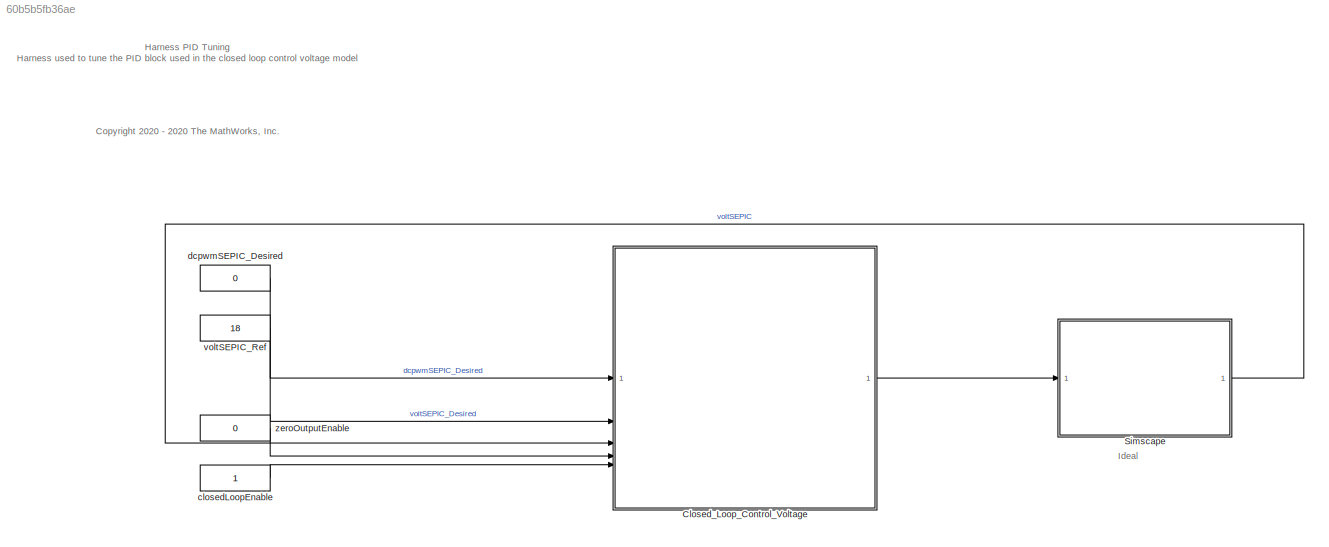
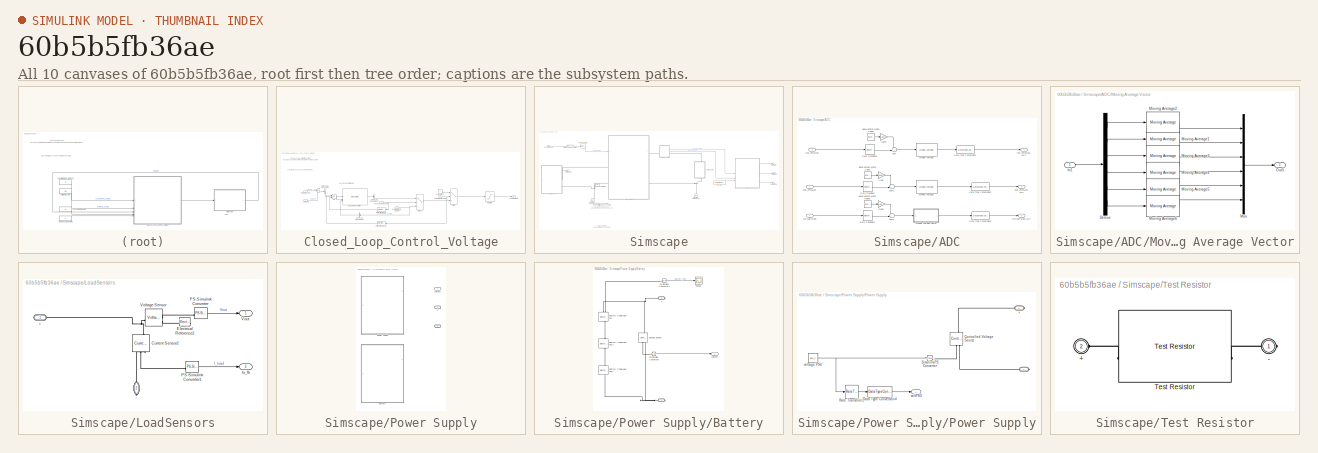
[diagram: thumbnail index - all 10 canvases of the model, root first then tree order]
MODEL slx_60b5b5fb36ae
KIND model
CONFIG AbsTol = auto
CONFIG EnableMultiTasking = off
CONFIG FixedStep = ts500us
CONFIG MaxStep = auto
CONFIG MinStep = auto
CONFIG RelTol = 1e-3
CONFIG SampleTimeConstraint = Unconstrained
CONFIG SolverName = ode23t
CONFIG StartTime = 0.0
CONFIG StopTime = 0.1
WORKSPACE source: mxarray member
WORKSPACE TsModel = 0.001
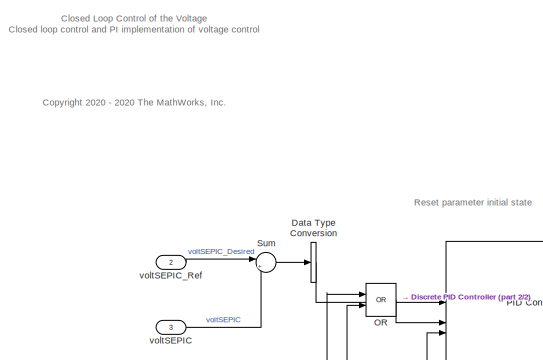
[diagram: Closed_Loop_Control_Voltage - part 1/2, middle left region]
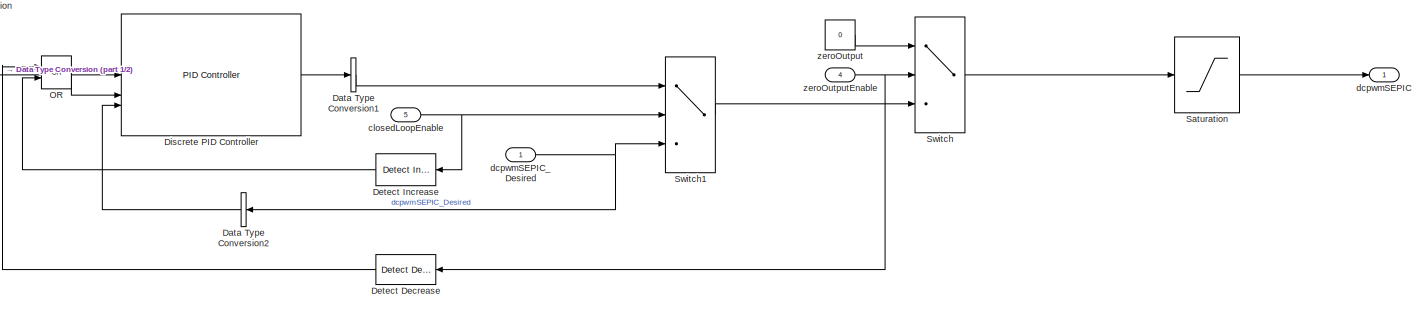
[diagram: Closed_Loop_Control_Voltage - part 2/2, full width, bottom band]
BLOCK [SubSystem] Closed_Loop_Control_Voltage
BLOCK [DataTypeConversion] Closed_Loop_Control_Voltage/Data Type Conversion
  OutDataTypeStr = double
  RndMeth = Floor
  SaturateOnIntegerOverflow = off
BLOCK [DataTypeConversion] Closed_Loop_Control_Voltage/Data Type Conversion1
  OutDataTypeStr = single
  RndMeth = Floor
  SaturateOnIntegerOverflow = off
BLOCK [DataTypeConversion] Closed_Loop_Control_Voltage/Data Type Conversion2
  NameLocation = top
  OutDataTypeStr = double
  RndMeth = Floor
  SaturateOnIntegerOverflow = off
BLOCK [Reference] Closed_Loop_Control_Voltage/Detect Decrease  REF=simulink/Logic and Bit
Operations/Detect
Decrease
  NameLocation = top
  SourceBlock = simulink/Logic and Bit\nOperations/Detect\nDecrease
  SourceType = Detect Decrease
BLOCK [Reference] Closed_Loop_Control_Voltage/Detect Increase  REF=simulink/Logic and Bit
Operations/Detect
Increase
  NameLocation = top
  SourceBlock = simulink/Logic and Bit\nOperations/Detect\nIncrease
  SourceType = Detect Increase
BLOCK [Reference] Closed_Loop_Control_Voltage/Discrete PID Controller  REF=slpidlib/PID Controller
  SourceBlock = slpidlib/PID Controller
  SourceType = PID 1dof
BLOCK [Logic] Closed_Loop_Control_Voltage/OR
  AllPortsSameDT = off
  Operator = OR
  OutDataTypeStr = boolean
BLOCK [Saturate] Closed_Loop_Control_Voltage/Saturation
  AttributesFormatString = %<UpperLimit>\n%<LowerLimit>
  LowerLimit = 0
  UpperLimit = dcpwmSEPICMax
BLOCK [Sum] Closed_Loop_Control_Voltage/Sum
  Inputs = |+-
BLOCK [Switch] Closed_Loop_Control_Voltage/Switch
  Criteria = u2 > Threshold
  InputSameDT = off
  SaturateOnIntegerOverflow = off
BLOCK [Switch] Closed_Loop_Control_Voltage/Switch1
  Criteria = u2 > Threshold
  InputSameDT = off
  SaturateOnIntegerOverflow = off
BLOCK [Inport] Closed_Loop_Control_Voltage/closedLoopEnable
  OutDataTypeStr = boolean
  Port = 5
  PortDimensions = 1
  SampleTime = TsModel
  SamplingMode = Sample based
  SignalType = real
  Unit = 1
BLOCK [Outport] Closed_Loop_Control_Voltage/dcpwmSEPIC
  OutDataTypeStr = single
  PortDimensions = 1
  SampleTime = TsModel
  SamplingMode = Sample based
  SignalType = real
  VectorParamsAs1DForOutWhenUnconnected = off
BLOCK [Inport] Closed_Loop_Control_Voltage/dcpwmSEPIC_Desired
  OutDataTypeStr = single
  PortDimensions = 1
  SampleTime = TsModel
  SamplingMode = Sample based
  SignalType = real
  Unit = 1
BLOCK [Inport] Closed_Loop_Control_Voltage/voltSEPIC
  OutDataTypeStr = single
  Port = 3
  PortDimensions = 1
  SampleTime = TsModel
  SamplingMode = Sample based
  SignalType = real
  Unit = V
BLOCK [Inport] Closed_Loop_Control_Voltage/voltSEPIC_Ref
  OutDataTypeStr = single
  Port = 2
  PortDimensions = 1
  SampleTime = TsModel
  SamplingMode = Sample based
  SignalType = real
  Unit = V
BLOCK [Constant] Closed_Loop_Control_Voltage/zeroOutput
  OutDataTypeStr = single
  Value = 0
BLOCK [Inport] Closed_Loop_Control_Voltage/zeroOutputEnable
  OutDataTypeStr = boolean
  Port = 4
  PortDimensions = 1
  SampleTime = TsModel
  SamplingMode = Sample based
  SignalType = real
  Unit = 1
BLOCK [SubSystem] Simscape
  VariantControl = Var_Plant==0
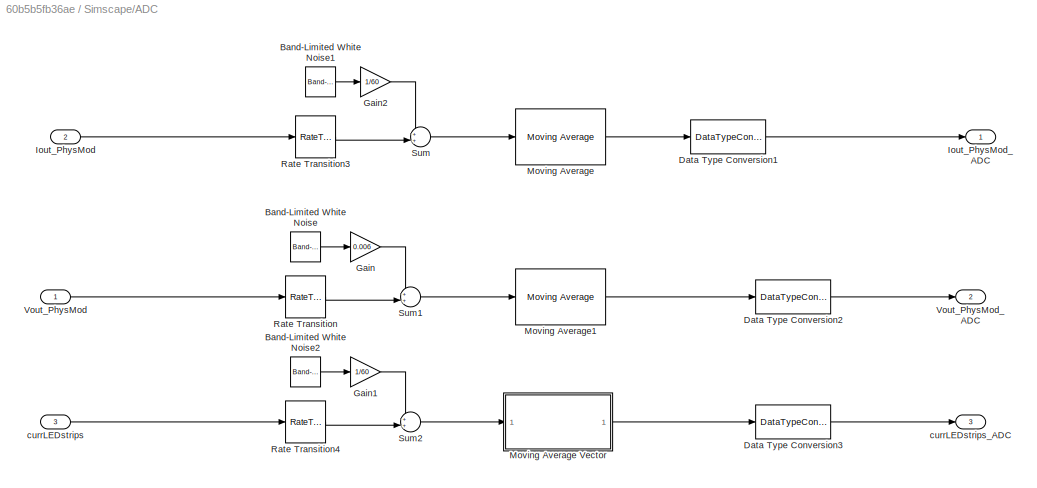
BLOCK [SubSystem] Simscape/ADC
BLOCK [Reference] Simscape/ADC/Band-Limited White Noise  REF=simulink/Sources/Band-Limited
White Noise
  SourceBlock = simulink/Sources/Band-Limited\nWhite Noise
  SourceType = Band-Limited White Noise.
BLOCK [Reference] Simscape/ADC/Band-Limited White Noise1  REF=simulink/Sources/Band-Limited
White Noise
  SourceBlock = simulink/Sources/Band-Limited\nWhite Noise
  SourceType = Band-Limited White Noise.
BLOCK [Reference] Simscape/ADC/Band-Limited White Noise2  REF=simulink/Sources/Band-Limited
White Noise
  SourceBlock = simulink/Sources/Band-Limited\nWhite Noise
  SourceType = Band-Limited White Noise.
BLOCK [DataTypeConversion] Simscape/ADC/Data Type Conversion1
  OutDataTypeStr = single
  RndMeth = Floor
  SaturateOnIntegerOverflow = off
BLOCK [DataTypeConversion] Simscape/ADC/Data Type Conversion2
  OutDataTypeStr = single
  RndMeth = Floor
  SaturateOnIntegerOverflow = off
BLOCK [DataTypeConversion] Simscape/ADC/Data Type Conversion3
  OutDataTypeStr = single
  RndMeth = Floor
  SaturateOnIntegerOverflow = off
BLOCK [Gain] Simscape/ADC/Gain
  Gain = 0.006
BLOCK [Gain] Simscape/ADC/Gain1
  Gain = 1/60
BLOCK [Gain] Simscape/ADC/Gain2
  Gain = 1/60
BLOCK [Inport] Simscape/ADC/Iout_PhysMod
  Port = 2
BLOCK [Outport] Simscape/ADC/Iout_PhysMod_ADC
BLOCK [Reference] Simscape/ADC/Moving Average  REF=dspstat3/Moving
Average
  SourceBlock = dspstat3/Moving\nAverage
  SourceType = dsp.simulink.MovingAverage
BLOCK [SubSystem] Simscape/ADC/Moving Average Vector
BLOCK [Demux] Simscape/ADC/Moving Average Vector/Demux
  Outputs = 6
BLOCK [Inport] Simscape/ADC/Moving Average Vector/In1
BLOCK [Reference] Simscape/ADC/Moving Average Vector/Moving Average1  REF=dspstat3/Moving
Average
  SourceBlock = dspstat3/Moving\nAverage
  SourceType = dsp.simulink.MovingAverage
BLOCK [Reference] Simscape/ADC/Moving Average Vector/Moving Average2  REF=dspstat3/Moving
Average
  SourceBlock = dspstat3/Moving\nAverage
  SourceType = dsp.simulink.MovingAverage
BLOCK [Reference] Simscape/ADC/Moving Average Vector/Moving Average3  REF=dspstat3/Moving
Average
  SourceBlock = dspstat3/Moving\nAverage
  SourceType = dsp.simulink.MovingAverage
BLOCK [Reference] Simscape/ADC/Moving Average Vector/Moving Average4  REF=dspstat3/Moving
Average
  SourceBlock = dspstat3/Moving\nAverage
  SourceType = dsp.simulink.MovingAverage
BLOCK [Reference] Simscape/ADC/Moving Average Vector/Moving Average5  REF=dspstat3/Moving
Average
  SourceBlock = dspstat3/Moving\nAverage
  SourceType = dsp.simulink.MovingAverage
BLOCK [Reference] Simscape/ADC/Moving Average Vector/Moving Average6  REF=dspstat3/Moving
Average
  SourceBlock = dspstat3/Moving\nAverage
  SourceType = dsp.simulink.MovingAverage
BLOCK [Mux] Simscape/ADC/Moving Average Vector/Mux
  DisplayOption = bar
  Inputs = 6
BLOCK [Outport] Simscape/ADC/Moving Average Vector/Out5
BLOCK [Reference] Simscape/ADC/Moving Average1  REF=dspstat3/Moving
Average
  SourceBlock = dspstat3/Moving\nAverage
  SourceType = dsp.simulink.MovingAverage
BLOCK [RateTransition] Simscape/ADC/Rate Transition
  OutPortSampleTime = ts500us
BLOCK [RateTransition] Simscape/ADC/Rate Transition3
  OutPortSampleTime = ts10ms
BLOCK [RateTransition] Simscape/ADC/Rate Transition4
  OutPortSampleTime = ts500us
BLOCK [Sum] Simscape/ADC/Sum
  Inputs = ++|
BLOCK [Sum] Simscape/ADC/Sum1
  Inputs = ++|
BLOCK [Sum] Simscape/ADC/Sum2
  Inputs = ++|
BLOCK [Inport] Simscape/ADC/Vout_PhysMod
BLOCK [Outport] Simscape/ADC/Vout_PhysMod_ADC
  Port = 2
BLOCK [Inport] Simscape/ADC/currLEDstrips
  Port = 3
BLOCK [Outport] Simscape/ADC/currLEDstrips_ADC
  Port = 3
BLOCK [Constant] Simscape/Constant
  Value = zeros(NrLEDStrips,1)
BLOCK [DataTypeConversion] Simscape/Data Type Conversion
  OutDataTypeStr = double
  RndMeth = Floor
  SaturateOnIntegerOverflow = off
BLOCK [Reference] Simscape/Electrical Reference1  REF=fl_lib/Electrical/Electrical Elements/Electrical Reference
  NameLocation = right
  SourceBlock = fl_lib/Electrical/Electrical Elements/Electrical Reference
  SourceType = Electrical Reference
BLOCK [Reference] Simscape/Electrical Reference2  REF=fl_lib/Electrical/Electrical Elements/Electrical Reference
  NameLocation = right
  SourceBlock = fl_lib/Electrical/Electrical Elements/Electrical Reference
  SourceType = Electrical Reference
BLOCK [SubSystem] Simscape/LoadSensors
BLOCK [PMIOPort] Simscape/LoadSensors/+
  Side = Left
BLOCK [PMIOPort] Simscape/LoadSensors/-
  NameLocation = left
  Port = 2
  Side = Right
BLOCK [Reference] Simscape/LoadSensors/Current Sensor2  REF=fl_lib/Electrical/Electrical Sensors/Current Sensor
  NameLocation = left
  SourceBlock = fl_lib/Electrical/Electrical Sensors/Current Sensor
  SourceType = Current Sensor
BLOCK [Reference] Simscape/LoadSensors/Electrical Reference2  REF=fl_lib/Electrical/Electrical Elements/Electrical Reference
  NameLocation = top
  SourceBlock = fl_lib/Electrical/Electrical Elements/Electrical Reference
  SourceType = Electrical Reference
BLOCK [Outport] Simscape/LoadSensors/Io_fb
  Port = 2
  VectorParamsAs1DForOutWhenUnconnected = off
BLOCK [Reference] Simscape/LoadSensors/PS-Simulink Converter  REF=nesl_utility/PS-Simulink
Converter
  SourceBlock = nesl_utility/PS-Simulink\nConverter
  SourceType = PS-Simulink\nConverter
BLOCK [Reference] Simscape/LoadSensors/PS-Simulink Converter1  REF=nesl_utility/PS-Simulink
Converter
  SourceBlock = nesl_utility/PS-Simulink\nConverter
  SourceType = PS-Simulink\nConverter
BLOCK [Reference] Simscape/LoadSensors/Voltage Sensor  REF=fl_lib/Electrical/Electrical Sensors/Voltage Sensor
  SourceBlock = fl_lib/Electrical/Electrical Sensors/Voltage Sensor
  SourceType = Voltage Sensor
BLOCK [Outport] Simscape/LoadSensors/Vout
  VectorParamsAs1DForOutWhenUnconnected = off
BLOCK [SubSystem] Simscape/Power Supply
  LabelModeActiveChoice = Battery
  Variant = on
  VariantControl = Variant1
  VariantControlMode = label
BLOCK [PMIOPort] Simscape/Power Supply/+
  Side = Right
BLOCK [PMIOPort] Simscape/Power Supply/-
  Port = 2
  Side = Right
BLOCK [SubSystem] Simscape/Power Supply/Battery
  VariantControl = Battery
BLOCK [PMIOPort] Simscape/Power Supply/Battery/+
  Side = Right
BLOCK [PMIOPort] Simscape/Power Supply/Battery/-
  Port = 2
  Side = Right
BLOCK [Reference] Simscape/Power Supply/Battery/Battery (Table-Based)  REF=batteryecm_lib/Battery
(Table-Based)
  NameLocation = right
  SourceBlock = batteryecm_lib/Battery\n(Table-Based)
  SourceType = Battery\n(Table-Based)
BLOCK [Reference] Simscape/Power Supply/Battery/Battery (Table-Based)1  REF=batteryecm_lib/Battery
(Table-Based)
  NameLocation = right
  SourceBlock = batteryecm_lib/Battery\n(Table-Based)
  SourceType = Battery\n(Table-Based)
BLOCK [Reference] Simscape/Power Supply/Battery/Battery (Table-Based)2  REF=batteryecm_lib/Battery
(Table-Based)
  NameLocation = right
  SourceBlock = batteryecm_lib/Battery\n(Table-Based)
  SourceType = Battery\n(Table-Based)
BLOCK [Reference] Simscape/Power Supply/Battery/PS-Simulink Converter  REF=nesl_utility/PS-Simulink
Converter
  SourceBlock = nesl_utility/PS-Simulink\nConverter
  SourceType = PS-Simulink\nConverter
BLOCK [Reference] Simscape/Power Supply/Battery/PS-Simulink Converter1  REF=nesl_utility/PS-Simulink
Converter
  SourceBlock = nesl_utility/PS-Simulink\nConverter
  SourceType = PS-Simulink\nConverter
BLOCK [Scope] Simscape/Power Supply/Battery/Scope
  Floating = off
  NumInputPorts = 1
  ScopeSpecificationString = Simulink.scopes.TimeScopeBlockCfg('CurrentConfiguration', extmgr.ConfigurationSet(extmgr.Configuration('Core','General UI',true),extmgr.Configuration('Core','Source UI',true),extmgr.Configuration('Sources','WiredSimulink',true,'DataLoggingVariableName','ScopeData8'),extmgr.Configuration('Visuals','Time Domain',true,'SerializedDisplays',{struct('MinYLimReal','0.79985','MaxYLimReal','0.80002','YLabe...<+1368ch>
BLOCK [Reference] Simscape/Power Supply/Battery/Voltage Sensor  REF=fl_lib/Electrical/Electrical Sensors/Voltage Sensor
  NameLocation = right
  SourceBlock = fl_lib/Electrical/Electrical Sensors/Voltage Sensor
  SourceType = Voltage Sensor
BLOCK [Outport] Simscape/Power Supply/Battery/voltPSU
  Unit = V
  VectorParamsAs1DForOutWhenUnconnected = off
BLOCK [SubSystem] Simscape/Power Supply/Power Supply
  VariantControl = PowerSupply
BLOCK [PMIOPort] Simscape/Power Supply/Power Supply/+
  Side = Right
BLOCK [PMIOPort] Simscape/Power Supply/Power Supply/-
  Port = 2
  Side = Right
BLOCK [Reference] Simscape/Power Supply/Power Supply/Controlled Voltage Source  REF=fl_lib/Electrical/Electrical Sources/Controlled Voltage
Source
  NameLocation = right
  SourceBlock = fl_lib/Electrical/Electrical Sources/Controlled Voltage\nSource
  SourceType = Controlled Voltage\nSource
BLOCK [DataTypeConversion] Simscape/Power Supply/Power Supply/Data Type Conversion4
  OutDataTypeStr = single
  RndMeth = Floor
  SaturateOnIntegerOverflow = off
BLOCK [RateTransition] Simscape/Power Supply/Power Supply/Rate Transition3
BLOCK [Reference] Simscape/Power Supply/Power Supply/Simulink-PS Converter  REF=nesl_utility/Simulink-PS
Converter
  SourceBlock = nesl_utility/Simulink-PS\nConverter
  SourceType = Simulink-PS\nConverter
BLOCK [Outport] Simscape/Power Supply/Power Supply/voltPSU
  SampleTime = ts
  Unit = V
  VectorParamsAs1DForOutWhenUnconnected = off
BLOCK [Constant] Simscape/Power Supply/Power Supply/voltage PSU
  OutDataTypeStr = double
  Value = psu_V
BLOCK [Outport] Simscape/Power Supply/voltPSU
BLOCK [RateTransition] Simscape/Rate Transition4
BLOCK [SubSystem] Simscape/SEPIC_Circuit
  ReferencedSubsystem = SEPIC_Circuit
  VariantControl = Var_Converter==2
BLOCK [Reference] Simscape/Solver Configuration  REF=nesl_utility/Solver
Configuration
  SourceBlock = nesl_utility/Solver\nConfiguration
  SourceType = Solver\nConfiguration
BLOCK [Terminator] Simscape/Terminator
BLOCK [Terminator] Simscape/Terminator1
BLOCK [Terminator] Simscape/Terminator2
BLOCK [SubSystem] Simscape/Test Resistor
  NameLocation = left
  VariantControl = Resistor
BLOCK [PMIOPort] Simscape/Test Resistor/+
  Port = 2
  Side = Left
BLOCK [PMIOPort] Simscape/Test Resistor/-
  Side = Right
BLOCK [Reference] Simscape/Test Resistor/Test Resistor  REF=SEPIC_utilities/Test Resistor
  SourceBlock = SEPIC_utilities/Test Resistor
  SourceType = Test Resistor
BLOCK [Inport] Simscape/dcpwmSEPIC
  OutDataTypeStr = single
  PortDimensions = 1
  SamplingMode = Sample based
  SignalType = real
  Unit = 1
BLOCK [Outport] Simscape/voltSEPIC
  OutDataTypeStr = single
  PortDimensions = 1
  SamplingMode = Sample based
  SignalType = real
  Unit = V
  VectorParamsAs1DForOutWhenUnconnected = off
BLOCK [Constant] closedLoopEnable
  OutDataTypeStr = boolean
  SampleTime = 0.001
BLOCK [Constant] dcpwmSEPIC_Desired
  OutDataTypeStr = single
  SampleTime = 0.001
  Value = 0
BLOCK [Constant] voltSEPIC_Ref
  OutDataTypeStr = single
  SampleTime = 0.001
  Value = 18
BLOCK [Constant] zeroOutputEnable
  OutDataTypeStr = boolean
  SampleTime = 0.001
  Value = 0
ANNOTATION (root): <copyright redacted>
ANNOTATION (root): Ideal
ANNOTATION (root): Harness PID Tuning Harness used to tune the PID block used in the closed loop control voltage model
ANNOTATION Closed_Loop_Control_Voltage: <copyright redacted>
ANNOTATION Closed_Loop_Control_Voltage: Reset parameter initial state
ANNOTATION Closed_Loop_Control_Voltage: Closed Loop Control of the Voltage Closed loop control and PI implementation of voltage control
ANNOTATION Simscape: TI Online Information TI DemoKit Online Schematics
ANNOTATION Simscape: Hardware Characteristics: - SEPIC PWM frequency: 100 kHz - LEDs PWM frequency: 20 kHz - Power Supply: 12 Volt - Operating region LEDs: 16.8-20.5 Volt
LINE Closed_Loop_Control_Voltage/Data Type Conversion1:1 -> Closed_Loop_Control_Voltage/Switch1:1
LINE Closed_Loop_Control_Voltage/Data Type Conversion2:1 -> Closed_Loop_Control_Voltage/Discrete PID Controller:3
LINE Closed_Loop_Control_Voltage/Data Type Conversion:1 -> Closed_Loop_Control_Voltage/Discrete PID Controller:1
LINE Closed_Loop_Control_Voltage/Detect Decrease:1 -> Closed_Loop_Control_Voltage/OR:1
LINE Closed_Loop_Control_Voltage/Detect Increase:1 -> Closed_Loop_Control_Voltage/OR:2
LINE Closed_Loop_Control_Voltage/Discrete PID Controller:1 -> Closed_Loop_Control_Voltage/Data Type Conversion1:1
LINE Closed_Loop_Control_Voltage/OR:1 -> Closed_Loop_Control_Voltage/Discrete PID Controller:2
LINE Closed_Loop_Control_Voltage/Saturation:1 -> Closed_Loop_Control_Voltage/dcpwmSEPIC:1
LINE Closed_Loop_Control_Voltage/Sum:1 -> Closed_Loop_Control_Voltage/Data Type Conversion:1
LINE Closed_Loop_Control_Voltage/Switch1:1 -> Closed_Loop_Control_Voltage/Switch:3
LINE Closed_Loop_Control_Voltage/Switch:1 -> Closed_Loop_Control_Voltage/Saturation:1
NET Closed_Loop_Control_Voltage/closedLoopEnable:1 -> Closed_Loop_Control_Voltage/Detect Increase:1, Closed_Loop_Control_Voltage/Switch1:2
NET Closed_Loop_Control_Voltage/dcpwmSEPIC_Desired:1 -> Closed_Loop_Control_Voltage/Data Type Conversion2:1, Closed_Loop_Control_Voltage/Switch1:3
LINE Closed_Loop_Control_Voltage/voltSEPIC:1 -> Closed_Loop_Control_Voltage/Sum:2
LINE Closed_Loop_Control_Voltage/voltSEPIC_Ref:1 -> Closed_Loop_Control_Voltage/Sum:1
LINE Closed_Loop_Control_Voltage/zeroOutput:1 -> Closed_Loop_Control_Voltage/Switch:1
NET Closed_Loop_Control_Voltage/zeroOutputEnable:1 -> Closed_Loop_Control_Voltage/Detect Decrease:1, Closed_Loop_Control_Voltage/Switch:2
LINE Closed_Loop_Control_Voltage:1 -> Simscape:1
LINE Simscape/ADC/Band-Limited White Noise1:1 -> Simscape/ADC/Gain2:1
LINE Simscape/ADC/Band-Limited White Noise2:1 -> Simscape/ADC/Gain1:1
LINE Simscape/ADC/Band-Limited White Noise:1 -> Simscape/ADC/Gain:1
LINE Simscape/ADC/Data Type Conversion1:1 -> Simscape/ADC/Iout_PhysMod_ADC:1
LINE Simscape/ADC/Data Type Conversion2:1 -> Simscape/ADC/Vout_PhysMod_ADC:1
LINE Simscape/ADC/Data Type Conversion3:1 -> Simscape/ADC/currLEDstrips_ADC:1
LINE Simscape/ADC/Gain1:1 -> Simscape/ADC/Sum2:1
LINE Simscape/ADC/Gain2:1 -> Simscape/ADC/Sum:1
LINE Simscape/ADC/Gain:1 -> Simscape/ADC/Sum1:1
LINE Simscape/ADC/Iout_PhysMod:1 -> Simscape/ADC/Rate Transition3:1
LINE Simscape/ADC/Moving Average Vector/Demux:1 -> Simscape/ADC/Moving Average Vector/Moving Average2:1
LINE Simscape/ADC/Moving Average Vector/Demux:2 -> Simscape/ADC/Moving Average Vector/Moving Average1:1
LINE Simscape/ADC/Moving Average Vector/Demux:3 -> Simscape/ADC/Moving Average Vector/Moving Average3:1
LINE Simscape/ADC/Moving Average Vector/Demux:4 -> Simscape/ADC/Moving Average Vector/Moving Average4:1
LINE Simscape/ADC/Moving Average Vector/Demux:5 -> Simscape/ADC/Moving Average Vector/Moving Average5:1
LINE Simscape/ADC/Moving Average Vector/Demux:6 -> Simscape/ADC/Moving Average Vector/Moving Average6:1
LINE Simscape/ADC/Moving Average Vector/In1:1 -> Simscape/ADC/Moving Average Vector/Demux:1
LINE Simscape/ADC/Moving Average Vector/Moving Average1:1 -> Simscape/ADC/Moving Average Vector/Mux:2
LINE Simscape/ADC/Moving Average Vector/Moving Average2:1 -> Simscape/ADC/Moving Average Vector/Mux:1
LINE Simscape/ADC/Moving Average Vector/Moving Average3:1 -> Simscape/ADC/Moving Average Vector/Mux:3
LINE Simscape/ADC/Moving Average Vector/Moving Average4:1 -> Simscape/ADC/Moving Average Vector/Mux:4
LINE Simscape/ADC/Moving Average Vector/Moving Average5:1 -> Simscape/ADC/Moving Average Vector/Mux:5
LINE Simscape/ADC/Moving Average Vector/Moving Average6:1 -> Simscape/ADC/Moving Average Vector/Mux:6
LINE Simscape/ADC/Moving Average Vector/Mux:1 -> Simscape/ADC/Moving Average Vector/Out5:1
LINE Simscape/ADC/Moving Average Vector:1 -> Simscape/ADC/Data Type Conversion3:1
LINE Simscape/ADC/Moving Average1:1 -> Simscape/ADC/Data Type Conversion2:1
LINE Simscape/ADC/Moving Average:1 -> Simscape/ADC/Data Type Conversion1:1
LINE Simscape/ADC/Rate Transition3:1 -> Simscape/ADC/Sum:2
LINE Simscape/ADC/Rate Transition4:1 -> Simscape/ADC/Sum2:2
LINE Simscape/ADC/Rate Transition:1 -> Simscape/ADC/Sum1:2
LINE Simscape/ADC/Sum1:1 -> Simscape/ADC/Moving Average1:1
LINE Simscape/ADC/Sum2:1 -> Simscape/ADC/Moving Average Vector:1
LINE Simscape/ADC/Sum:1 -> Simscape/ADC/Moving Average:1
LINE Simscape/ADC/Vout_PhysMod:1 -> Simscape/ADC/Rate Transition:1
LINE Simscape/ADC/currLEDstrips:1 -> Simscape/ADC/Rate Transition4:1
LINE Simscape/ADC:1 -> Simscape/Terminator:1
LINE Simscape/ADC:2 -> Simscape/voltSEPIC:1
LINE Simscape/ADC:3 -> Simscape/Terminator1:1
LINE Simscape/Constant:1 -> Simscape/ADC:3
LINE Simscape/Data Type Conversion:1 -> Simscape/Rate Transition4:1
LINE Simscape/LoadSensors/PS-Simulink Converter1:1 -> Simscape/LoadSensors/Io_fb:1
LINE Simscape/LoadSensors/PS-Simulink Converter:1 -> Simscape/LoadSensors/Vout:1
LINE Simscape/LoadSensors:1 -> Simscape/ADC:1
LINE Simscape/LoadSensors:2 -> Simscape/ADC:2
LINE Simscape/Power Supply/Battery/PS-Simulink Converter1:1 -> Simscape/Power Supply/Battery/Scope:1
LINE Simscape/Power Supply/Battery/PS-Simulink Converter:1 -> Simscape/Power Supply/Battery/voltPSU:1
LINE Simscape/Power Supply/Power Supply/Data Type Conversion4:1 -> Simscape/Power Supply/Power Supply/voltPSU:1
LINE Simscape/Power Supply/Power Supply/Rate Transition3:1 -> Simscape/Power Supply/Power Supply/Data Type Conversion4:1
NET Simscape/Power Supply/Power Supply/voltage PSU:1 -> Simscape/Power Supply/Power Supply/Rate Transition3:1, Simscape/Power Supply/Power Supply/Simulink-PS Converter:1
LINE Simscape/Power Supply:1 -> Simscape/Terminator2:1
LINE Simscape/Rate Transition4:1 -> Simscape/SEPIC_Circuit:1
LINE Simscape/dcpwmSEPIC:1 -> Simscape/Data Type Conversion:1
LINE Simscape:1 -> Closed_Loop_Control_Voltage:3
LINE closedLoopEnable:1 -> Closed_Loop_Control_Voltage:5
LINE dcpwmSEPIC_Desired:1 -> Closed_Loop_Control_Voltage:1
LINE voltSEPIC_Ref:1 -> Closed_Loop_Control_Voltage:2
LINE zeroOutputEnable:1 -> Closed_Loop_Control_Voltage:4
PNET net1: Simscape/Electrical Reference1:LConn1 -- Simscape/Power Supply:RConn2 -- Simscape/SEPIC_Circuit:LConn2 -- Simscape/Solver Configuration:RConn1
PNET net2: Simscape/Electrical Reference2:LConn1 -- Simscape/SEPIC_Circuit:RConn2 -- Simscape/Test Resistor:RConn1
PNET net3: Simscape/LoadSensors/+:RConn1 -- Simscape/LoadSensors/Current Sensor2:LConn1 -- Simscape/LoadSensors/Voltage Sensor:LConn1
PLINE Simscape/LoadSensors/-:RConn1 -- Simscape/LoadSensors/Current Sensor2:RConn2
PLINE Simscape/LoadSensors/Current Sensor2:RConn1 -- Simscape/LoadSensors/PS-Simulink Converter1:LConn1
PLINE Simscape/LoadSensors/Electrical Reference2:LConn1 -- Simscape/LoadSensors/Voltage Sensor:RConn2
PLINE Simscape/LoadSensors/PS-Simulink Converter:LConn1 -- Simscape/LoadSensors/Voltage Sensor:RConn1
PLINE Simscape/LoadSensors:LConn1 -- Simscape/SEPIC_Circuit:RConn1
PLINE Simscape/LoadSensors:RConn1 -- Simscape/Test Resistor:LConn1
PNET net4: Simscape/Power Supply/Battery/+:RConn1 -- Simscape/Power Supply/Battery/Battery (Table-Based):LConn1 -- Simscape/Power Supply/Battery/Voltage Sensor:LConn1
PNET net5: Simscape/Power Supply/Battery/-:RConn1 -- Simscape/Power Supply/Battery/Battery (Table-Based)2:RConn1 -- Simscape/Power Supply/Battery/Voltage Sensor:RConn2
PLINE Simscape/Power Supply/Battery/Battery (Table-Based)1:LConn1 -- Simscape/Power Supply/Battery/Battery (Table-Based):RConn1
PLINE Simscape/Power Supply/Battery/Battery (Table-Based)1:RConn1 -- Simscape/Power Supply/Battery/Battery (Table-Based)2:LConn1
PLINE Simscape/Power Supply/Battery/Battery (Table-Based):LConn2 -- Simscape/Power Supply/Battery/PS-Simulink Converter1:LConn1
PLINE Simscape/Power Supply/Battery/PS-Simulink Converter:LConn1 -- Simscape/Power Supply/Battery/Voltage Sensor:RConn1
PLINE Simscape/Power Supply/Power Supply/+:RConn1 -- Simscape/Power Supply/Power Supply/Controlled Voltage Source:LConn1
PLINE Simscape/Power Supply/Power Supply/-:RConn1 -- Simscape/Power Supply/Power Supply/Controlled Voltage Source:RConn2
PLINE Simscape/Power Supply/Power Supply/Controlled Voltage Source:RConn1 -- Simscape/Power Supply/Power Supply/Simulink-PS Converter:RConn1
PLINE Simscape/Power Supply:RConn1 -- Simscape/SEPIC_Circuit:LConn1
PLINE Simscape/Test Resistor/+:RConn1 -- Simscape/Test Resistor/Test Resistor:LConn1
PLINE Simscape/Test Resistor/-:RConn1 -- Simscape/Test Resistor/Test Resistor:RConn1
note: NET lines group one-source signal fan-out (src -> all destinations, sorted); 1:1 wires keep LINE; PNET lines group multi-terminal physical nets as a canonical sorted terminal list (undirected conserving connections); 2-terminal nets keep the pairwise PLINE form
